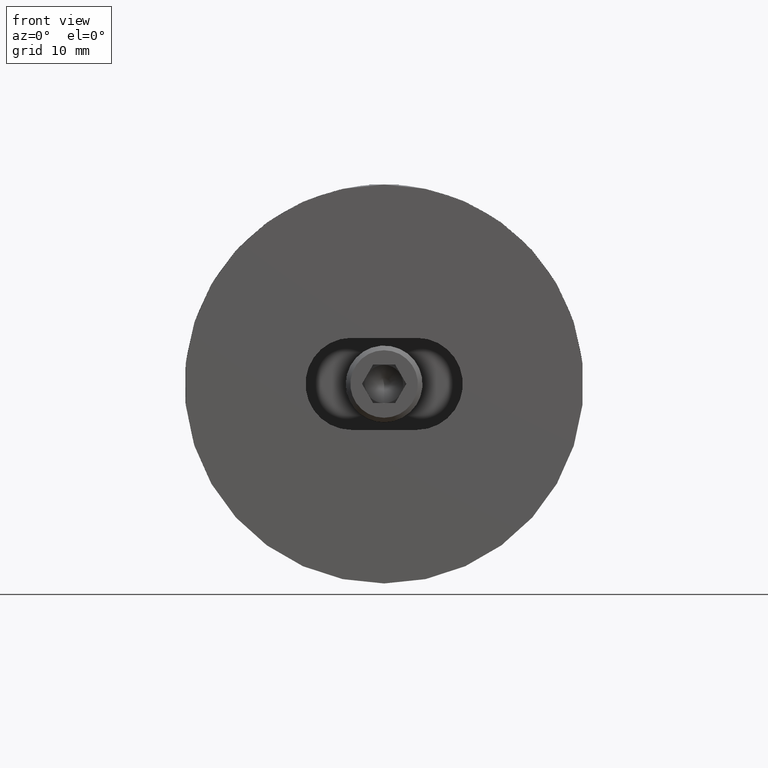
[diagram: clean part render]
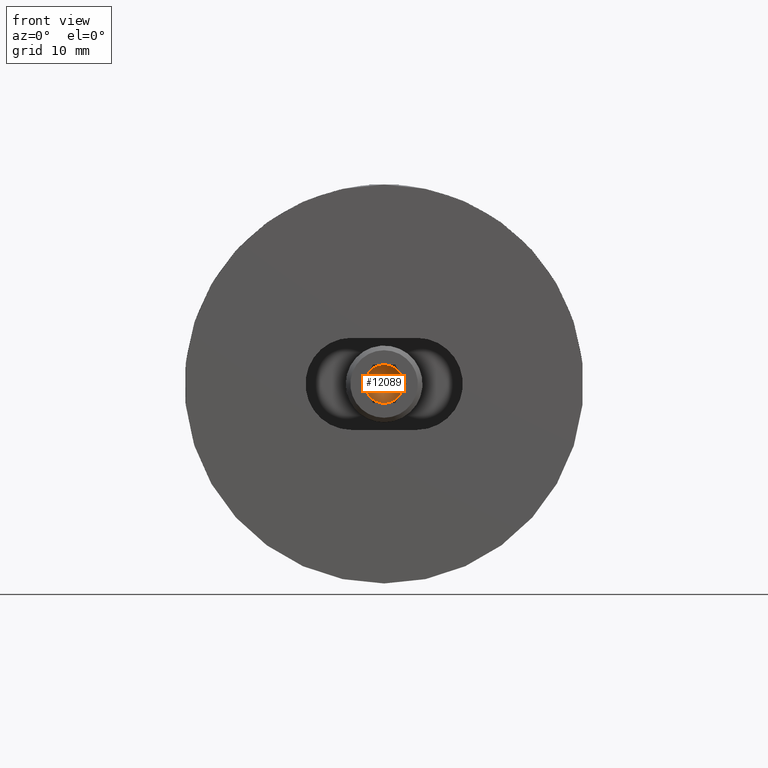
[diagram: same view with one face highlighted and labeled with its STEP entity id]
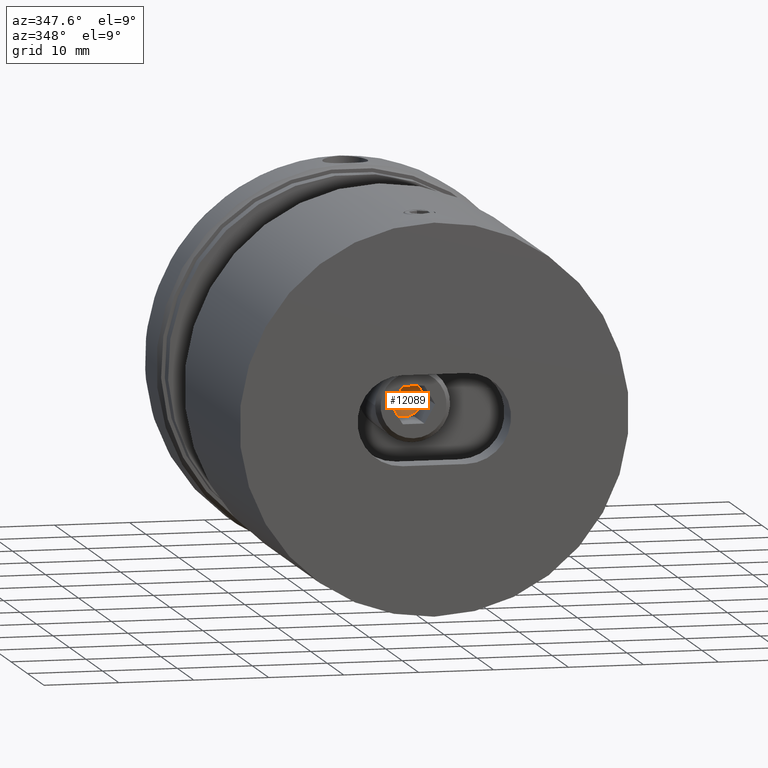
[diagram: same view with one face highlighted and labeled with its STEP entity id]
A machine part, front view. The second image highlights one B-rep face of the part: STEP entity #12089.
A second angle (auxiliary view) of the same face is appended — the face is thin or edge-on in the first view.
In plain terms, the highlighted conical surface has half-angle 59 deg.
Its self-contained STEP definition (entity closure, byte-faithful):
#40 = CARTESIAN_POINT ( 'NONE',  ( 39.00000000000000000, 0.0000000000000000000, -3.265203223180752700E-015 ) ) ;
#559 = VERTEX_POINT ( 'NONE', #2370 ) ;
#1001 = CIRCLE ( 'NONE', #5827, 2.499999999999996000 ) ;
#1246 = AXIS2_PLACEMENT_3D ( 'NONE', #19154, #12592, #12372 ) ;
#1339 = EDGE_CURVE ( 'NONE', #16765, #559, #16320, .T. ) ;
#1386 = AXIS2_PLACEMENT_3D ( 'NONE', #40, #3510, #15417 ) ;
#1957 = EDGE_CURVE ( 'NONE', #16765, #4924, #2266, .T. ) ;
#2266 = CIRCLE ( 'NONE', #6443, 2.499999999999996000 ) ;
#2308 = ORIENTED_EDGE ( 'NONE', *, *, #1957, .F. ) ;
#2370 = CARTESIAN_POINT ( 'NONE',  ( 39.00000000000000000, 2.165063509461093700, -1.250000000000001800 ) ) ;
#2519 = EDGE_LOOP ( 'NONE', ( #12151, #13215, #18414, #4355, #16389, #2308 ) ) ;
#2792 = CARTESIAN_POINT ( 'NONE',  ( 39.00000000000000000, 0.0000000000000000000, -3.265203223180752700E-015 ) ) ;
#2876 = FACE_OUTER_BOUND ( 'NONE', #2519, .T. ) ;
#3378 = CARTESIAN_POINT ( 'NONE',  ( 39.00000000000000000, 0.0000000000000000000, -3.265203223180752700E-015 ) ) ;
#3510 = DIRECTION ( 'NONE',  ( -1.000000000000000000, -0.0000000000000000000, 0.0000000000000000000 ) ) ;
#3821 = VERTEX_POINT ( 'NONE', #17420 ) ;
#4190 = CARTESIAN_POINT ( 'NONE',  ( 39.00000000000000000, 2.165063509461093300, 1.249999999999994400 ) ) ;
#4275 = CARTESIAN_POINT ( 'NONE',  ( 39.00000000000000000, 0.0000000000000000000, -3.265203223180752700E-015 ) ) ;
#4355 = ORIENTED_EDGE ( 'NONE', *, *, #22379, .F. ) ;
#4662 = AXIS2_PLACEMENT_3D ( 'NONE', #20187, #4729, #14982 ) ;
#4671 = CIRCLE ( 'NONE', #1386, 2.499999999999996000 ) ;
#4729 = DIRECTION ( 'NONE',  ( 1.000000000000000000, -0.0000000000000000000, -1.718218320010719200E-016 ) ) ;
#4924 = VERTEX_POINT ( 'NONE', #13894 ) ;
#5033 = VERTEX_POINT ( 'NONE', #4190 ) ;
#5440 = DIRECTION ( 'NONE',  ( 1.000000000000000000, -0.0000000000000000000, -1.718218320010719200E-016 ) ) ;
#5827 = AXIS2_PLACEMENT_3D ( 'NONE', #3378, #20581, #8746 ) ;
#6126 = CARTESIAN_POINT ( 'NONE',  ( 39.00000000000000000, 0.0000000000000000000, -2.500000000000000000 ) ) ;
#6443 = AXIS2_PLACEMENT_3D ( 'NONE', #2792, #21609, #16525 ) ;
#7035 = DIRECTION ( 'NONE',  ( 0.0000000000000000000, 0.0000000000000000000, -1.000000000000000000 ) ) ;
#8746 = DIRECTION ( 'NONE',  ( 0.0000000000000000000, 0.0000000000000000000, 1.000000000000000000 ) ) ;
#9724 = DIRECTION ( 'NONE',  ( -1.000000000000000000, -0.0000000000000000000, 0.0000000000000000000 ) ) ;
#10509 = CARTESIAN_POINT ( 'NONE',  ( 39.00000000000000000, 0.0000000000000000000, -3.980102097228898600E-015 ) ) ;
#12029 = EDGE_CURVE ( 'NONE', #4924, #18335, #22081, .T. ) ;
#12089 = ADVANCED_FACE ( 'NONE', ( #2876 ), #21800, .F. ) ;
#12151 = ORIENTED_EDGE ( 'NONE', *, *, #1339, .T. ) ;
#12164 = EDGE_CURVE ( 'NONE', #5033, #559, #1001, .T. ) ;
#12372 = DIRECTION ( 'NONE',  ( 0.0000000000000000000, 0.0000000000000000000, 1.000000000000000000 ) ) ;
#12592 = DIRECTION ( 'NONE',  ( -1.000000000000000000, -0.0000000000000000000, 0.0000000000000000000 ) ) ;
#13215 = ORIENTED_EDGE ( 'NONE', *, *, #12164, .F. ) ;
#13894 = CARTESIAN_POINT ( 'NONE',  ( 39.00000000000000000, -2.165063509461094200, -1.250000000000000700 ) ) ;
#14982 = DIRECTION ( 'NONE',  ( 0.0000000000000000000, 0.0000000000000000000, -1.000000000000000000 ) ) ;
#15417 = DIRECTION ( 'NONE',  ( 0.0000000000000000000, 0.0000000000000000000, 1.000000000000000000 ) ) ;
#16320 = CIRCLE ( 'NONE', #21626, 2.499999999999996000 ) ;
#16389 = ORIENTED_EDGE ( 'NONE', *, *, #12029, .F. ) ;
#16525 = DIRECTION ( 'NONE',  ( 0.0000000000000000000, 0.0000000000000000000, 1.000000000000000000 ) ) ;
#16765 = VERTEX_POINT ( 'NONE', #6126 ) ;
#16800 = CIRCLE ( 'NONE', #1246, 2.499999999999996000 ) ;
#17420 = CARTESIAN_POINT ( 'NONE',  ( 39.00000000000000000, 3.755786496842901500E-016, 2.500000000000000000 ) ) ;
#17810 = AXIS2_PLACEMENT_3D ( 'NONE', #4275, #9724, #18090 ) ;
#18090 = DIRECTION ( 'NONE',  ( 0.0000000000000000000, 0.0000000000000000000, 1.000000000000000000 ) ) ;
#18335 = VERTEX_POINT ( 'NONE', #19186 ) ;
#18414 = ORIENTED_EDGE ( 'NONE', *, *, #21777, .F. ) ;
#19154 = CARTESIAN_POINT ( 'NONE',  ( 39.00000000000000000, 0.0000000000000000000, -3.265203223180752700E-015 ) ) ;
#19186 = CARTESIAN_POINT ( 'NONE',  ( 39.00000000000000000, -2.165063509461092800, 1.249999999999994700 ) ) ;
#20187 = CARTESIAN_POINT ( 'NONE',  ( 39.00000000000000000, 0.0000000000000000000, -3.980102097228898600E-015 ) ) ;
#20581 = DIRECTION ( 'NONE',  ( -1.000000000000000000, -0.0000000000000000000, 0.0000000000000000000 ) ) ;
#21609 = DIRECTION ( 'NONE',  ( -1.000000000000000000, -0.0000000000000000000, 0.0000000000000000000 ) ) ;
#21626 = AXIS2_PLACEMENT_3D ( 'NONE', #10509, #5440, #7035 ) ;
#21777 = EDGE_CURVE ( 'NONE', #3821, #5033, #4671, .T. ) ;
#21800 = CONICAL_SURFACE ( 'NONE', #4662, 2.499999999999996000, 1.029744258676649900 ) ;
#22081 = CIRCLE ( 'NONE', #17810, 2.499999999999996000 ) ;
#22379 = EDGE_CURVE ( 'NONE', #18335, #3821, #16800, .T. ) ;